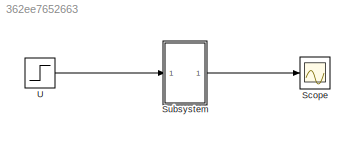
MODEL slx_362ee7652663
KIND model
CONFIG AbsTol = auto
CONFIG EnableMultiTasking = off
CONFIG FixedStep = auto
CONFIG MaxStep = auto
CONFIG MinStep = auto
CONFIG RelTol = 1e-3
CONFIG SampleTimeConstraint = Unconstrained
CONFIG SolverName = VariableStepAuto
CONFIG StartTime = 0.0
CONFIG StopTime = 10.0
BLOCK [Scope] Scope
  Floating = off
  NumInputPorts = 1
  Ports = [1]
  ScopeSpecificationString = Simulink.scopes.TimeScopeBlockCfg('CurrentConfiguration', extmgr.ConfigurationSet(extmgr.Configuration('Core','General UI',true),extmgr.Configuration('Core','Source UI',true),extmgr.Configuration('Sources','WiredSimulink',true),extmgr.Configuration('Visuals','Time Domain',true),extmgr.Configuration('Tools','Plot Navigation',true),extmgr.Configuration('Tools','Measurements',true)),'Version','2022a'...<+1ch>
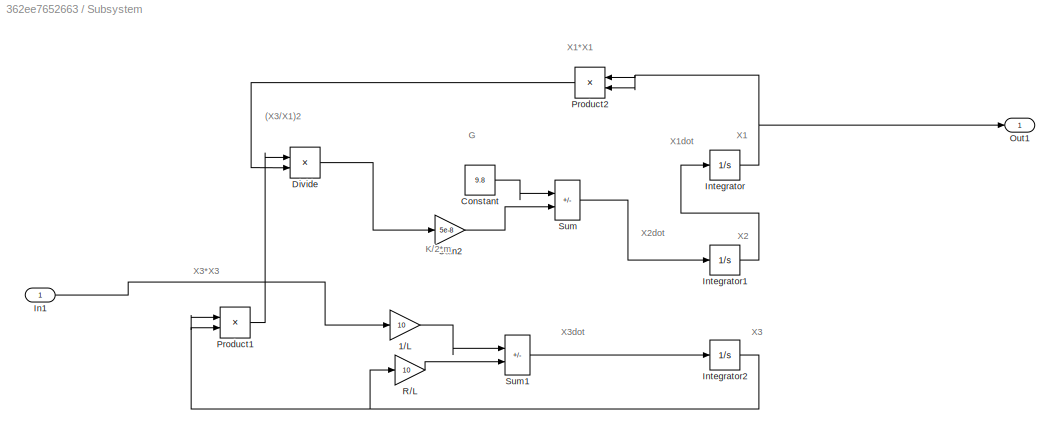
BLOCK [SubSystem] Subsystem
  Ports = [1, 1]
  RequestExecContextInheritance = off
BLOCK [Gain] Subsystem/1//L
  Gain = 10
BLOCK [Constant] Subsystem/Constant
  Value = 9.8
BLOCK [Product] Subsystem/Divide
  Inputs = */
  Ports = [2, 1]
BLOCK [Gain] Subsystem/Gain2
  Gain = 5e-8
BLOCK [Inport] Subsystem/In1
BLOCK [Integrator] Subsystem/Integrator
  Ports = [1, 1]
BLOCK [Integrator] Subsystem/Integrator1
  Ports = [1, 1]
BLOCK [Integrator] Subsystem/Integrator2
  Ports = [1, 1]
BLOCK [Outport] Subsystem/Out1
BLOCK [Product] Subsystem/Product1
  Ports = [2, 1]
BLOCK [Product] Subsystem/Product2
  NameLocation = top
  Ports = [2, 1]
BLOCK [Gain] Subsystem/R//L
  Gain = 10
BLOCK [Sum] Subsystem/Sum
  IconShape = rectangular
  Inputs = |+-
  Ports = [2, 1]
BLOCK [Sum] Subsystem/Sum1
  IconShape = rectangular
  Inputs = |+-
  Ports = [2, 1]
BLOCK [Step] U
  SampleTime = 0
ANNOTATION Subsystem: (X3/X1)2
ANNOTATION Subsystem: G
ANNOTATION Subsystem: K/2*m
ANNOTATION Subsystem: X1
ANNOTATION Subsystem: X1*X1
ANNOTATION Subsystem: X1dot
ANNOTATION Subsystem: X2
ANNOTATION Subsystem: X2dot
ANNOTATION Subsystem: X3
ANNOTATION Subsystem: X3*X3
ANNOTATION Subsystem: X3dot
LINE Subsystem/1//L:1 -> Subsystem/Sum1:1
LINE Subsystem/Constant:1 -> Subsystem/Sum:1
LINE Subsystem/Divide:1 -> Subsystem/Gain2:1
LINE Subsystem/Gain2:1 -> Subsystem/Sum:2
LINE Subsystem/In1:1 -> Subsystem/1//L:1
LINE Subsystem/Integrator1:1 -> Subsystem/Integrator:1
NET Subsystem/Integrator2:1 -> Subsystem/Product1:1, Subsystem/Product1:2, Subsystem/R//L:1
NET Subsystem/Integrator:1 -> Subsystem/Out1:1, Subsystem/Product2:1, Subsystem/Product2:2
LINE Subsystem/Product1:1 -> Subsystem/Divide:1
LINE Subsystem/Product2:1 -> Subsystem/Divide:2
LINE Subsystem/R//L:1 -> Subsystem/Sum1:2
LINE Subsystem/Sum1:1 -> Subsystem/Integrator2:1
LINE Subsystem/Sum:1 -> Subsystem/Integrator1:1
LINE Subsystem:1 -> Scope:1
LINE U:1 -> Subsystem:1
note: NET lines group one-source signal fan-out (src -> all destinations, sorted); 1:1 wires keep LINE
